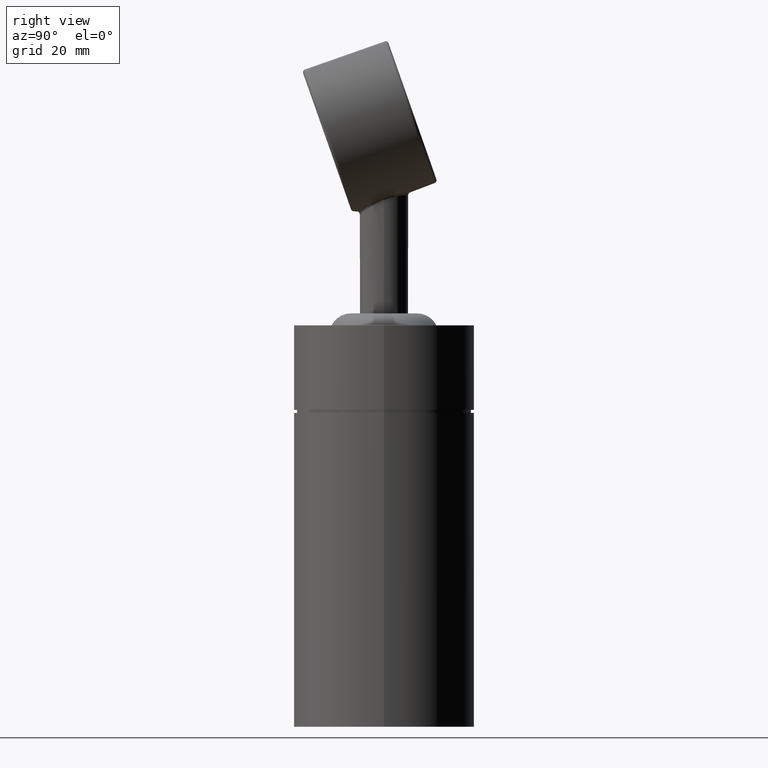
[diagram: clean part render]
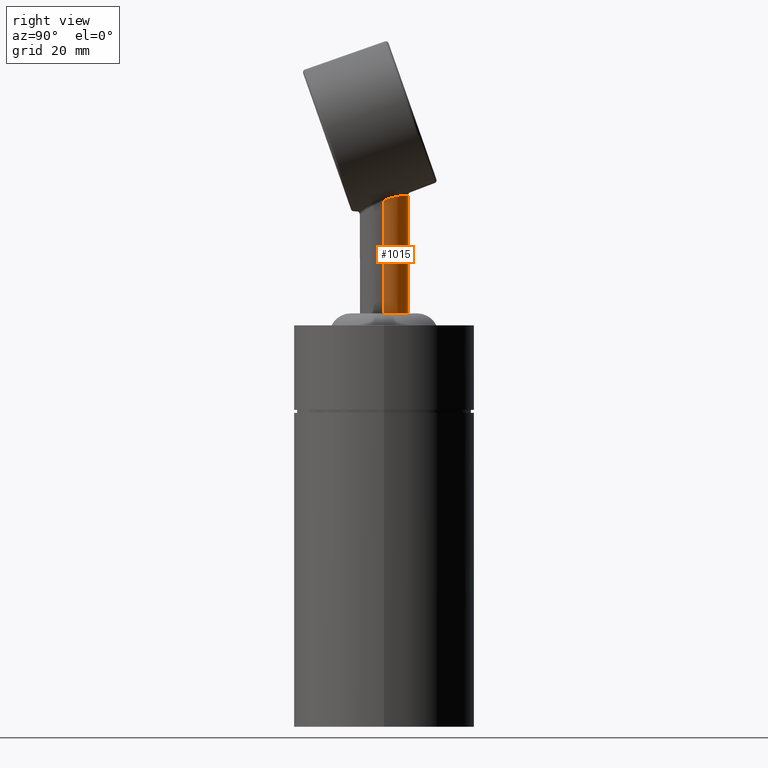
[diagram: same view with one face highlighted and labeled with its STEP entity id]
A machine part, right view. The second image highlights one B-rep face of the part: STEP entity #1015.
In plain terms, the highlighted cylindrical surface (edge-blend (fillet) strip) has radius 4 mm, axis along (0, 0, 1).
Its self-contained STEP definition (entity closure, byte-faithful):
#16=CARTESIAN_POINT('',(0.E0,0.E0,1.65E1));
#17=DIRECTION('',(0.E0,0.E0,1.E0));
#18=DIRECTION('',(1.E0,0.E0,0.E0));
#19=AXIS2_PLACEMENT_3D('',#16,#17,#18);
#140=CARTESIAN_POINT('',(-4.E0,-4.609198976200E-9,3.521913917701E1));
#141=CARTESIAN_POINT('',(-3.999985230900E0,3.067654521854E-1,3.534055827517E1));
#142=CARTESIAN_POINT('',(-3.928916385134E0,9.153624308068E-1,3.555443589372E1));
#143=CARTESIAN_POINT('',(-3.626955609755E0,1.764023304812E0,3.578212823445E1));
#144=CARTESIAN_POINT('',(-3.147791946208E0,2.521781763790E0,3.592939902655E1));
#145=CARTESIAN_POINT('',(-2.509933071473E0,3.157510506480E0,3.601311639929E1));
#146=CARTESIAN_POINT('',(-1.745368207097E0,3.636702586765E0,3.605295849981E1));
#147=CARTESIAN_POINT('',(-8.900035291581E-1,3.934217411952E0,3.606794750636E1));
#148=CARTESIAN_POINT('',(-2.960776713851E-1,3.999996809411E0,3.607016344161E1));
#149=CARTESIAN_POINT('',(-2.261843415790E-9,4.E0,3.607016425017E1));
#151=DIRECTION('',(0.E0,1.664497909864E-10,1.E0));
#152=VECTOR('',#151,1.871913918007E1);
#153=CARTESIAN_POINT('',(4.E0,0.E0,1.65E1));
#154=LINE('',#153,#152);
#155=CARTESIAN_POINT('',(-2.261843415790E-9,4.E0,3.607016425017E1));
#156=CARTESIAN_POINT('',(2.963937946946E-1,3.999988800609E0,3.607016279701E1));
#157=CARTESIAN_POINT('',(8.907603191297E-1,3.934053162687E0,3.606794041116E1));
#158=CARTESIAN_POINT('',(1.745764314093E0,3.636491686746E0,3.605294537276E1));
#159=CARTESIAN_POINT('',(2.510344013653E0,3.157197750885E0,3.601308347645E1));
#160=CARTESIAN_POINT('',(3.148169744089E0,2.521321894752E0,3.592932470820E1));
#161=CARTESIAN_POINT('',(3.627294267388E0,1.763354048070E0,3.578198422177E1));
#162=CARTESIAN_POINT('',(3.929059375063E0,9.146407247151E-1,3.555422568054E1));
#163=CARTESIAN_POINT('',(3.999986678920E0,3.064791168668E-1,3.534044564055E1));
#164=CARTESIAN_POINT('',(4.E0,3.115796314109E-9,3.521913918007E1));
#244=CARTESIAN_POINT('',(4.E0,3.115796314109E-9,3.521913918007E1));
#256=DIRECTION('',(0.E0,-2.462292428339E-10,1.E0));
#257=VECTOR('',#256,1.871913917701E1);
#258=CARTESIAN_POINT('',(-4.E0,0.E0,1.65E1));
#259=LINE('',#258,#257);
#269=CARTESIAN_POINT('',(-4.E0,-4.609198976200E-9,3.521913917701E1));
#636=CARTESIAN_POINT('',(4.E0,0.E0,1.65E1));
#637=CARTESIAN_POINT('',(-4.E0,0.E0,1.65E1));
#638=VERTEX_POINT('',#636);
#639=VERTEX_POINT('',#637);
#642=VERTEX_POINT('',#244);
#645=VERTEX_POINT('',#269);
#647=VERTEX_POINT('',#149);
#999=CARTESIAN_POINT('',(0.E0,0.E0,1.65E1));
#1000=DIRECTION('',(0.E0,0.E0,1.E0));
#1001=DIRECTION('',(1.E0,0.E0,0.E0));
#1002=AXIS2_PLACEMENT_3D('',#999,#1000,#1001);
#1003=CYLINDRICAL_SURFACE('',#1002,4.E0);
#1005=ORIENTED_EDGE('',*,*,#1004,.F.);
#1007=ORIENTED_EDGE('',*,*,#1006,.F.);
#1008=ORIENTED_EDGE('',*,*,#731,.F.);
#1010=ORIENTED_EDGE('',*,*,#1009,.T.);
#1012=ORIENTED_EDGE('',*,*,#1011,.F.);
#1013=EDGE_LOOP('',(#1005,#1007,#1008,#1010,#1012));
#1014=FACE_OUTER_BOUND('',#1013,.F.);
#1015=ADVANCED_FACE('',(#1014),#1003,.T.);
#20=CIRCLE('',#19,4.E0);
#150=B_SPLINE_CURVE_WITH_KNOTS('',3,(#140,#141,#142,#143,#144,#145,#146,#147,
#148,#149),.UNSPECIFIED.,.F.,.F.,(4,1,1,1,1,1,1,4),(0.E0,1.428571428571E-1,
2.857142857143E-1,4.285714285714E-1,5.714285714286E-1,7.142857142857E-1,
8.571428571429E-1,1.E0),.UNSPECIFIED.);
#165=B_SPLINE_CURVE_WITH_KNOTS('',3,(#155,#156,#157,#158,#159,#160,#161,#162,
#163,#164),.UNSPECIFIED.,.F.,.F.,(4,1,1,1,1,1,1,4),(0.E0,1.428571428571E-1,
2.857142857143E-1,4.285714285714E-1,5.714285714286E-1,7.142857142857E-1,
8.571428571429E-1,1.E0),.UNSPECIFIED.);
#731=EDGE_CURVE('',#638,#639,#20,.T.);
#1004=EDGE_CURVE('',#645,#647,#150,.T.);
#1006=EDGE_CURVE('',#639,#645,#259,.T.);
#1009=EDGE_CURVE('',#638,#642,#154,.T.);
#1011=EDGE_CURVE('',#647,#642,#165,.T.);